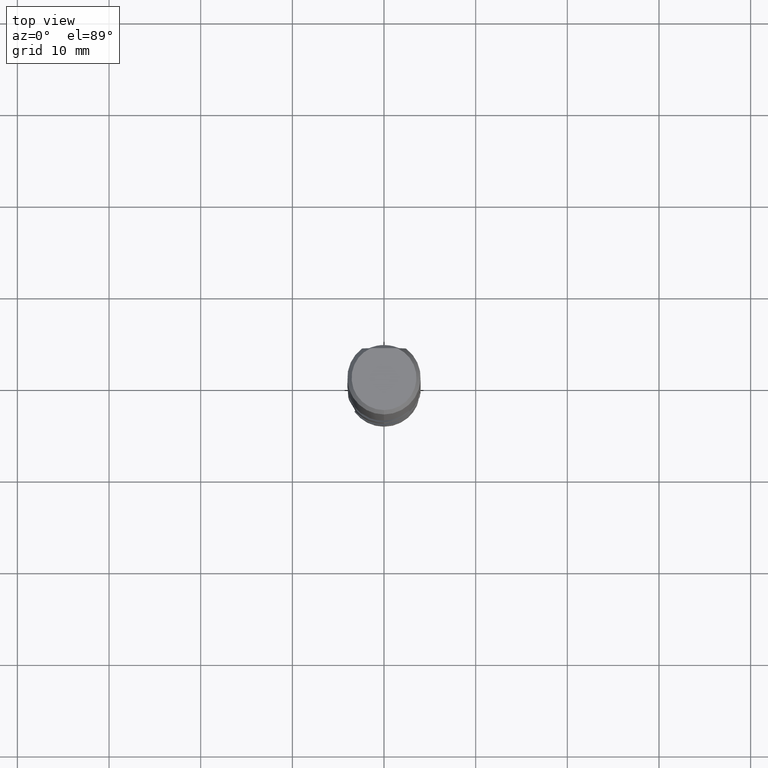
[diagram: clean part render]
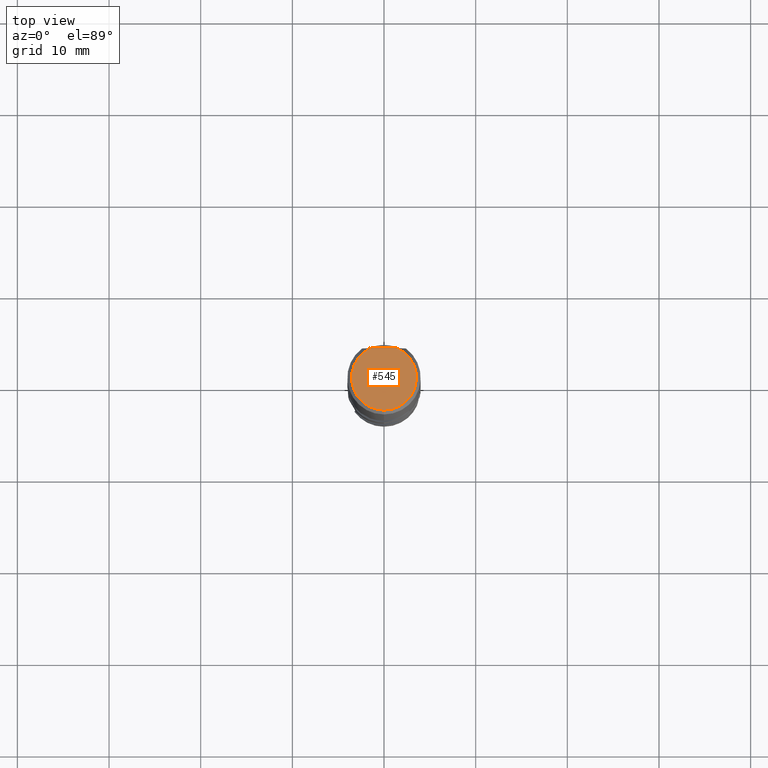
[diagram: same view with one face highlighted and labeled with its STEP entity id]
A machine part, top view. The second image highlights one B-rep face of the part: STEP entity #545.
In plain terms, the highlighted planar face has unit normal (-0, 0, 1).
Its self-contained STEP definition (entity closure, byte-faithful):
#303=VERTEX_POINT('',#834);
#377=EDGE_CURVE('',#303,#703,#914,.T.);
#467=VERTEX_POINT('',#1012);
#485=EDGE_CURVE('',#467,#703,#1031,.T.);
#545=ADVANCED_FACE('',(#1096),#1097,.T.);
#653=EDGE_CURVE('',#303,#467,#1218,.T.);
#703=VERTEX_POINT('',#1276);
#834=CARTESIAN_POINT('',(1.44727416204323,3.22857385085146,0.0));
#914=LINE('',#2919,#2920);
#1012=CARTESIAN_POINT('',(4.33280396886497E-016,-3.5381197846483,0.0));
#1031=CIRCLE('',#4436,3.5381197846483);
#1096=FACE_OUTER_BOUND('',#5524,.T.);
#1097=PLANE('',#5525);
#1218=CIRCLE('',#6680,3.5381197846483);
#1276=CARTESIAN_POINT('',(-1.44727416204323,3.22857385085146,0.0));
#2919=CARTESIAN_POINT('',(-2.0,3.22857385085146,1.77635683940025E-015));
#2920=VECTOR('',#8015,1.0);
#4436=AXIS2_PLACEMENT_3D('',#8112,#8113,#8114);
#5524=EDGE_LOOP('',(#8158,#8159,#8160));
#5525=AXIS2_PLACEMENT_3D('',#8161,#8162,#8163);
#6680=AXIS2_PLACEMENT_3D('',#8351,#8352,#8353);
#8015=DIRECTION('',(-1.0,0.0,0.0));
#8112=CARTESIAN_POINT('',(0.0,0.0,0.0));
#8113=DIRECTION('',(0.0,0.0,-1.0));
#8114=DIRECTION('',(0.0,1.0,0.0));
#8158=ORIENTED_EDGE('',*,*,#377,.T.);
#8159=ORIENTED_EDGE('',*,*,#485,.F.);
#8160=ORIENTED_EDGE('',*,*,#653,.F.);
#8161=CARTESIAN_POINT('',(0.0,1.76905989232415,0.0));
#8162=DIRECTION('',(-0.0,0.0,1.0));
#8163=DIRECTION('',(0.0,-1.0,0.0));
#8351=CARTESIAN_POINT('',(0.0,0.0,0.0));
#8352=DIRECTION('',(0.0,0.0,-1.0));
#8353=DIRECTION('',(0.0,1.0,0.0));